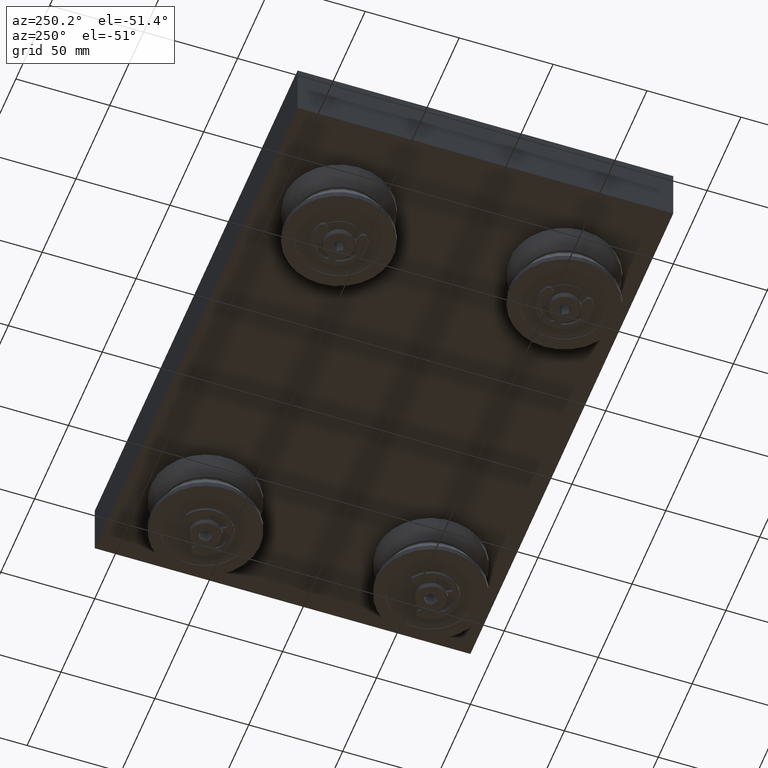
[diagram: clean part render]
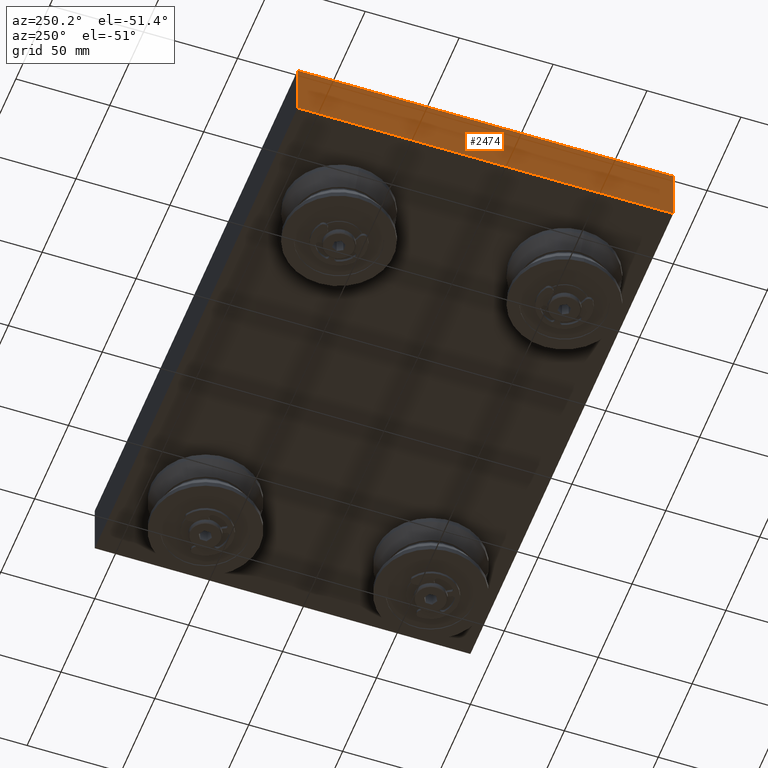
[diagram: same view with one face highlighted and labeled with its STEP entity id]
A machine part, auxiliary view. The second image highlights one B-rep face of the part: STEP entity #2474.
In plain terms, the highlighted planar face has unit normal (-1, 0, 0).
Its self-contained STEP definition (entity closure, byte-faithful):
#153=LINE('',#4056,#352);
#154=LINE('',#4059,#353);
#155=LINE('',#4061,#354);
#156=LINE('',#4062,#355);
#352=VECTOR('',#3223,10.);
#353=VECTOR('',#3226,10.);
#354=VECTOR('',#3227,10.);
#355=VECTOR('',#3228,10.);
#629=FACE_OUTER_BOUND('',#794,.T.);
#794=EDGE_LOOP('',(#1720,#1721,#1722,#1723));
#1126=VERTEX_POINT('',#4052);
#1127=VERTEX_POINT('',#4054);
#1128=VERTEX_POINT('',#4058);
#1129=VERTEX_POINT('',#4060);
#1355=EDGE_CURVE('',#1126,#1127,#153,.T.);
#1356=EDGE_CURVE('',#1126,#1128,#154,.T.);
#1357=EDGE_CURVE('',#1129,#1127,#155,.T.);
#1358=EDGE_CURVE('',#1128,#1129,#156,.T.);
#1720=ORIENTED_EDGE('',*,*,#1356,.F.);
#1721=ORIENTED_EDGE('',*,*,#1355,.T.);
#1722=ORIENTED_EDGE('',*,*,#1357,.F.);
#1723=ORIENTED_EDGE('',*,*,#1358,.F.);
#2372=PLANE('',#2855);
#2474=ADVANCED_FACE('',(#629),#2372,.T.);
#2855=AXIS2_PLACEMENT_3D('',#4057,#3224,#3225);
#3223=DIRECTION('',(0.,0.,1.));
#3224=DIRECTION('center_axis',(-1.,0.,0.));
#3225=DIRECTION('ref_axis',(0.,-1.,0.));
#3226=DIRECTION('',(0.,1.,0.));
#3227=DIRECTION('',(0.,-1.,0.));
#3228=DIRECTION('',(0.,0.,1.));
#4052=CARTESIAN_POINT('',(-150.,-100.,0.));
#4054=CARTESIAN_POINT('',(-150.,-100.,30.));
#4056=CARTESIAN_POINT('',(-150.,-100.,0.));
#4057=CARTESIAN_POINT('Origin',(-150.,100.,0.));
#4058=CARTESIAN_POINT('',(-150.,100.,0.));
#4059=CARTESIAN_POINT('',(-150.,-100.,0.));
#4060=CARTESIAN_POINT('',(-150.,100.,30.));
#4061=CARTESIAN_POINT('',(-150.,-100.,30.));
#4062=CARTESIAN_POINT('',(-150.,100.,0.));